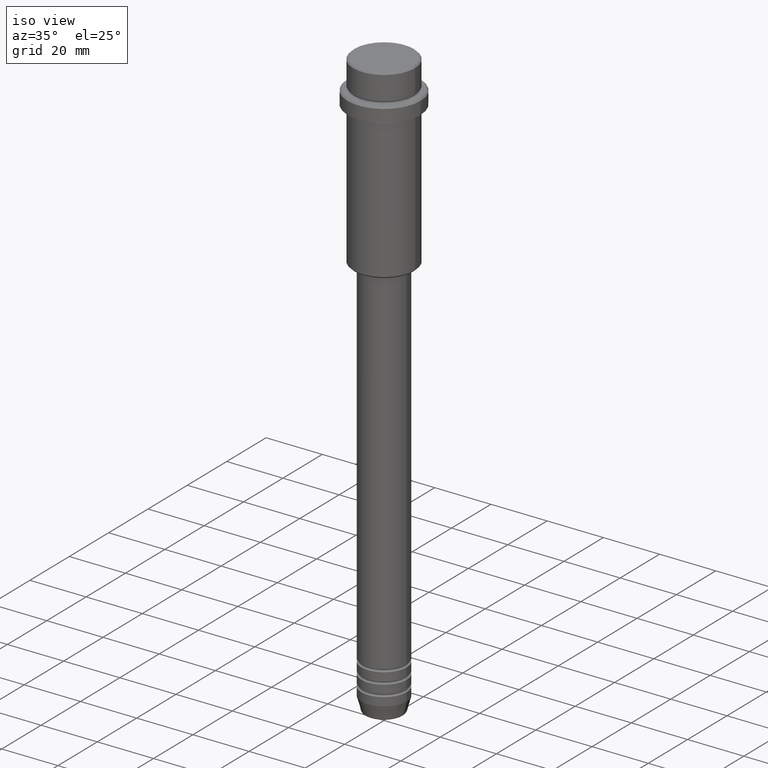
[diagram: clean part render]
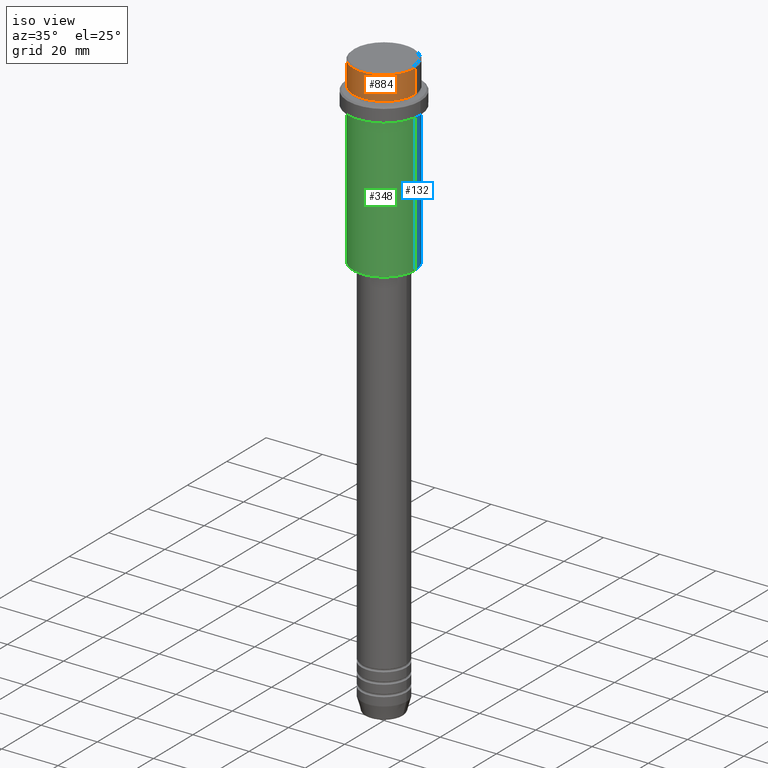
[diagram: same view with three faces highlighted in distinct colors, each labeled with its STEP entity id]
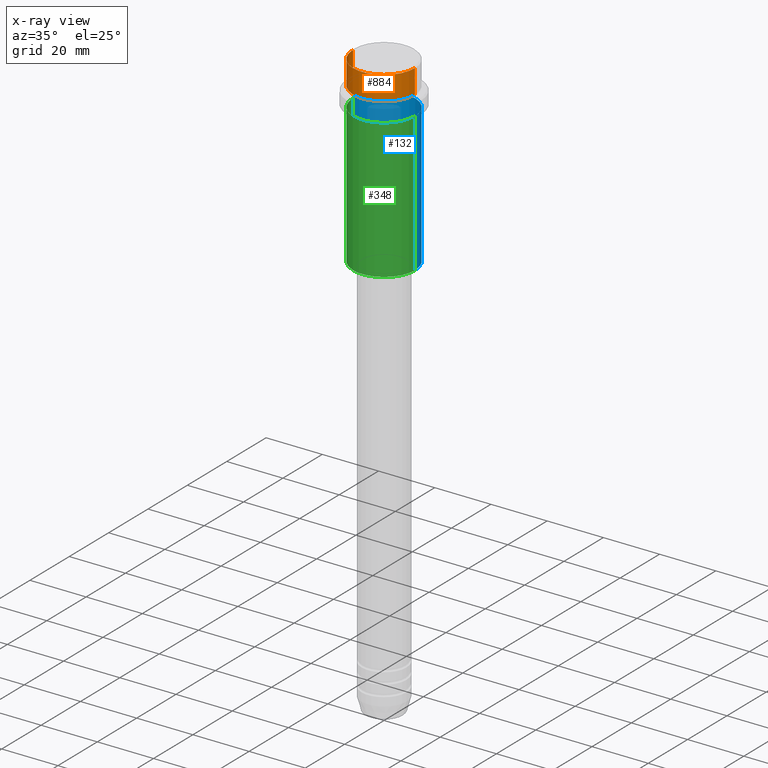
[diagram: x-ray of the same camera — body ghosted, the three highlighted faces saturated]
A machine part, iso view with three faces highlighted in distinct colors.
The next image is the same camera in x-ray (body ghosted, the three faces saturated) — at least one of them is partly hidden behind the body in this view.
Their STEP definitions:

[orange] entity #884 — the highlighted cylindrical surface (partial cylindrical patch) has radius 11 mm, axis along (-0, -0, 1).
#9 = DIRECTION ( 'NONE',  ( 1.000000000000000000, 0.000000000000000000, 0.000000000000000000 ) ) ;
#96 = DIRECTION ( 'NONE',  ( 0.000000000000000000, 0.000000000000000000, -1.000000000000000000 ) ) ;
#115 = CARTESIAN_POINT ( 'NONE',  ( -10.99999999999997158, 1.347111479062085841E-15, -9.000000000000000000 ) ) ;
#131 = CIRCLE ( 'NONE', #928, 10.99999999999997158 ) ;
#305 = DIRECTION ( 'NONE',  ( -0.000000000000000000, -0.000000000000000000, 1.000000000000000000 ) ) ;
#314 = VECTOR ( 'NONE', #1154, 1000.000000000000000 ) ;
#418 = CARTESIAN_POINT ( 'NONE',  ( 0.000000000000000000, 0.000000000000000000, -0.4999999999999605316 ) ) ;
#602 = VERTEX_POINT ( 'NONE', #1382 ) ;
#626 = AXIS2_PLACEMENT_3D ( 'NONE', #418, #96, #1162 ) ;
#637 = VERTEX_POINT ( 'NONE', #115 ) ;
#671 = CARTESIAN_POINT ( 'NONE',  ( 0.000000000000000000, 0.000000000000000000, -9.000000000000000000 ) ) ;
#702 = LINE ( 'NONE', #1038, #314 ) ;
#722 = CARTESIAN_POINT ( 'NONE',  ( 10.99999999999998757, 0.000000000000000000, 0.000000000000000000 ) ) ;
#786 = CARTESIAN_POINT ( 'NONE',  ( 0.000000000000000000, 0.000000000000000000, 0.000000000000000000 ) ) ;
#821 = ORIENTED_EDGE ( 'NONE', *, *, #1124, .T. ) ;
#846 = LINE ( 'NONE', #722, #952 ) ;
#884 = ADVANCED_FACE ( 'NONE', ( #1112 ), #1331, .T. ) ;
#892 = DIRECTION ( 'NONE',  ( -0.000000000000000000, -0.000000000000000000, 1.000000000000000000 ) ) ;
#894 = EDGE_CURVE ( 'NONE', #637, #1004, #702, .T. ) ;
#897 = DIRECTION ( 'NONE',  ( 1.000000000000000000, 0.000000000000000000, 0.000000000000000000 ) ) ;
#928 = AXIS2_PLACEMENT_3D ( 'NONE', #671, #892, #9 ) ;
#929 = ORIENTED_EDGE ( 'NONE', *, *, #977, .T. ) ;
#952 = VECTOR ( 'NONE', #305, 1000.000000000000000 ) ;
#977 = EDGE_CURVE ( 'NONE', #637, #1323, #131, .T. ) ;
#1004 = VERTEX_POINT ( 'NONE', #1232 ) ;
#1038 = CARTESIAN_POINT ( 'NONE',  ( -10.99999999999998757, 1.347111479062086827E-15, 0.000000000000000000 ) ) ;
#1082 = EDGE_CURVE ( 'NONE', #602, #1004, #1252, .T. ) ;
#1112 = FACE_OUTER_BOUND ( 'NONE', #1410, .T. ) ;
#1124 = EDGE_CURVE ( 'NONE', #1323, #602, #846, .T. ) ;
#1151 = ORIENTED_EDGE ( 'NONE', *, *, #894, .F. ) ;
#1154 = DIRECTION ( 'NONE',  ( -0.000000000000000000, -0.000000000000000000, 1.000000000000000000 ) ) ;
#1162 = DIRECTION ( 'NONE',  ( 1.000000000000000000, 0.000000000000000000, 0.000000000000000000 ) ) ;
#1183 = AXIS2_PLACEMENT_3D ( 'NONE', #786, #1227, #897 ) ;
#1227 = DIRECTION ( 'NONE',  ( -0.000000000000000000, -0.000000000000000000, 1.000000000000000000 ) ) ;
#1232 = CARTESIAN_POINT ( 'NONE',  ( -10.99999999999998757, 1.347111479062086827E-15, -0.4999999999999605316 ) ) ;
#1252 = CIRCLE ( 'NONE', #626, 10.99999999999998757 ) ;
#1323 = VERTEX_POINT ( 'NONE', #1350 ) ;
#1331 = CYLINDRICAL_SURFACE ( 'NONE', #1183, 10.99999999999998757 ) ;
#1350 = CARTESIAN_POINT ( 'NONE',  ( 10.99999999999997158, 0.000000000000000000, -9.000000000000000000 ) ) ;
#1380 = ORIENTED_EDGE ( 'NONE', *, *, #1082, .T. ) ;
#1382 = CARTESIAN_POINT ( 'NONE',  ( 10.99999999999998757, 0.000000000000000000, -0.4999999999999605316 ) ) ;
#1410 = EDGE_LOOP ( 'NONE', ( #1151, #929, #821, #1380 ) ) ;

[blue] entity #132 — the highlighted cylindrical surface (partial cylindrical patch) has radius 11 mm, axis along (-0, -0, 1).
#11 = ORIENTED_EDGE ( 'NONE', *, *, #498, .T. ) ;
#22 = DIRECTION ( 'NONE',  ( 1.000000000000000000, 0.000000000000000000, 0.000000000000000000 ) ) ;
#65 = ORIENTED_EDGE ( 'NONE', *, *, #991, .F. ) ;
#107 = AXIS2_PLACEMENT_3D ( 'NONE', #344, #1333, #662 ) ;
#132 = ADVANCED_FACE ( 'NONE', ( #978 ), #432, .T. ) ;
#204 = CARTESIAN_POINT ( 'NONE',  ( 10.99999999999998757, 0.000000000000000000, 0.000000000000000000 ) ) ;
#230 = CARTESIAN_POINT ( 'NONE',  ( -10.99999999999997158, 1.347111479062085841E-15, -16.00000000000000355 ) ) ;
#240 = AXIS2_PLACEMENT_3D ( 'NONE', #445, #1327, #22 ) ;
#255 = VERTEX_POINT ( 'NONE', #366 ) ;
#263 = CARTESIAN_POINT ( 'NONE',  ( 0.000000000000000000, 0.000000000000000000, -65.50000000000001421 ) ) ;
#281 = LINE ( 'NONE', #502, #442 ) ;
#344 = CARTESIAN_POINT ( 'NONE',  ( 0.000000000000000000, 0.000000000000000000, -16.00000000000000355 ) ) ;
#358 = AXIS2_PLACEMENT_3D ( 'NONE', #263, #881, #1120 ) ;
#366 = CARTESIAN_POINT ( 'NONE',  ( 10.99999999999998757, 0.000000000000000000, -65.50000000000001421 ) ) ;
#430 = ORIENTED_EDGE ( 'NONE', *, *, #783, .T. ) ;
#432 = CYLINDRICAL_SURFACE ( 'NONE', #240, 10.99999999999998757 ) ;
#442 = VECTOR ( 'NONE', #613, 1000.000000000000000 ) ;
#445 = CARTESIAN_POINT ( 'NONE',  ( 0.000000000000000000, 0.000000000000000000, 0.000000000000000000 ) ) ;
#498 = EDGE_CURVE ( 'NONE', #528, #964, #281, .T. ) ;
#502 = CARTESIAN_POINT ( 'NONE',  ( -10.99999999999998757, 1.347111479062086827E-15, 0.000000000000000000 ) ) ;
#528 = VERTEX_POINT ( 'NONE', #961 ) ;
#539 = CIRCLE ( 'NONE', #107, 10.99999999999997158 ) ;
#613 = DIRECTION ( 'NONE',  ( -0.000000000000000000, -0.000000000000000000, 1.000000000000000000 ) ) ;
#662 = DIRECTION ( 'NONE',  ( 1.000000000000000000, 0.000000000000000000, 0.000000000000000000 ) ) ;
#714 = ORIENTED_EDGE ( 'NONE', *, *, #1062, .F. ) ;
#783 = EDGE_CURVE ( 'NONE', #255, #528, #875, .T. ) ;
#833 = VERTEX_POINT ( 'NONE', #888 ) ;
#875 = CIRCLE ( 'NONE', #358, 10.99999999999998757 ) ;
#881 = DIRECTION ( 'NONE',  ( -0.000000000000000000, -0.000000000000000000, 1.000000000000000000 ) ) ;
#888 = CARTESIAN_POINT ( 'NONE',  ( 10.99999999999997158, 0.000000000000000000, -16.00000000000000355 ) ) ;
#961 = CARTESIAN_POINT ( 'NONE',  ( -10.99999999999998757, 1.347111479062086827E-15, -65.50000000000001421 ) ) ;
#964 = VERTEX_POINT ( 'NONE', #230 ) ;
#978 = FACE_OUTER_BOUND ( 'NONE', #1261, .T. ) ;
#991 = EDGE_CURVE ( 'NONE', #833, #964, #539, .T. ) ;
#1062 = EDGE_CURVE ( 'NONE', #255, #833, #1072, .T. ) ;
#1072 = LINE ( 'NONE', #204, #1273 ) ;
#1079 = DIRECTION ( 'NONE',  ( -0.000000000000000000, -0.000000000000000000, 1.000000000000000000 ) ) ;
#1120 = DIRECTION ( 'NONE',  ( -1.000000000000000000, 0.000000000000000000, 0.000000000000000000 ) ) ;
#1261 = EDGE_LOOP ( 'NONE', ( #430, #11, #65, #714 ) ) ;
#1273 = VECTOR ( 'NONE', #1079, 1000.000000000000000 ) ;
#1327 = DIRECTION ( 'NONE',  ( -0.000000000000000000, -0.000000000000000000, 1.000000000000000000 ) ) ;
#1333 = DIRECTION ( 'NONE',  ( -0.000000000000000000, -0.000000000000000000, 1.000000000000000000 ) ) ;

[green] entity #348 — the highlighted cylindrical surface (partial cylindrical patch) has radius 11 mm, axis along (-0, -0, 1).
#23 = ORIENTED_EDGE ( 'NONE', *, *, #378, .F. ) ;
#57 = AXIS2_PLACEMENT_3D ( 'NONE', #154, #463, #819 ) ;
#122 = CYLINDRICAL_SURFACE ( 'NONE', #1404, 10.99999999999998757 ) ;
#154 = CARTESIAN_POINT ( 'NONE',  ( 0.000000000000000000, 0.000000000000000000, -16.00000000000000355 ) ) ;
#204 = CARTESIAN_POINT ( 'NONE',  ( 10.99999999999998757, 0.000000000000000000, 0.000000000000000000 ) ) ;
#227 = FACE_OUTER_BOUND ( 'NONE', #913, .T. ) ;
#230 = CARTESIAN_POINT ( 'NONE',  ( -10.99999999999997158, 1.347111479062085841E-15, -16.00000000000000355 ) ) ;
#250 = EDGE_CURVE ( 'NONE', #528, #255, #1043, .T. ) ;
#255 = VERTEX_POINT ( 'NONE', #366 ) ;
#264 = DIRECTION ( 'NONE',  ( 1.000000000000000000, 0.000000000000000000, 0.000000000000000000 ) ) ;
#281 = LINE ( 'NONE', #502, #442 ) ;
#348 = ADVANCED_FACE ( 'NONE', ( #227 ), #122, .T. ) ;
#366 = CARTESIAN_POINT ( 'NONE',  ( 10.99999999999998757, 0.000000000000000000, -65.50000000000001421 ) ) ;
#377 = DIRECTION ( 'NONE',  ( -0.000000000000000000, -0.000000000000000000, 1.000000000000000000 ) ) ;
#378 = EDGE_CURVE ( 'NONE', #964, #833, #1358, .T. ) ;
#442 = VECTOR ( 'NONE', #613, 1000.000000000000000 ) ;
#463 = DIRECTION ( 'NONE',  ( -0.000000000000000000, -0.000000000000000000, 1.000000000000000000 ) ) ;
#498 = EDGE_CURVE ( 'NONE', #528, #964, #281, .T. ) ;
#502 = CARTESIAN_POINT ( 'NONE',  ( -10.99999999999998757, 1.347111479062086827E-15, 0.000000000000000000 ) ) ;
#528 = VERTEX_POINT ( 'NONE', #961 ) ;
#536 = AXIS2_PLACEMENT_3D ( 'NONE', #1150, #377, #600 ) ;
#558 = CARTESIAN_POINT ( 'NONE',  ( 0.000000000000000000, 0.000000000000000000, 0.000000000000000000 ) ) ;
#590 = ORIENTED_EDGE ( 'NONE', *, *, #498, .F. ) ;
#600 = DIRECTION ( 'NONE',  ( -1.000000000000000000, 0.000000000000000000, 0.000000000000000000 ) ) ;
#613 = DIRECTION ( 'NONE',  ( -0.000000000000000000, -0.000000000000000000, 1.000000000000000000 ) ) ;
#636 = ORIENTED_EDGE ( 'NONE', *, *, #250, .T. ) ;
#779 = DIRECTION ( 'NONE',  ( -0.000000000000000000, -0.000000000000000000, 1.000000000000000000 ) ) ;
#819 = DIRECTION ( 'NONE',  ( 1.000000000000000000, 0.000000000000000000, 0.000000000000000000 ) ) ;
#833 = VERTEX_POINT ( 'NONE', #888 ) ;
#888 = CARTESIAN_POINT ( 'NONE',  ( 10.99999999999997158, 0.000000000000000000, -16.00000000000000355 ) ) ;
#913 = EDGE_LOOP ( 'NONE', ( #590, #636, #1164, #23 ) ) ;
#961 = CARTESIAN_POINT ( 'NONE',  ( -10.99999999999998757, 1.347111479062086827E-15, -65.50000000000001421 ) ) ;
#964 = VERTEX_POINT ( 'NONE', #230 ) ;
#1043 = CIRCLE ( 'NONE', #536, 10.99999999999998757 ) ;
#1062 = EDGE_CURVE ( 'NONE', #255, #833, #1072, .T. ) ;
#1072 = LINE ( 'NONE', #204, #1273 ) ;
#1079 = DIRECTION ( 'NONE',  ( -0.000000000000000000, -0.000000000000000000, 1.000000000000000000 ) ) ;
#1150 = CARTESIAN_POINT ( 'NONE',  ( 0.000000000000000000, 0.000000000000000000, -65.50000000000001421 ) ) ;
#1164 = ORIENTED_EDGE ( 'NONE', *, *, #1062, .T. ) ;
#1273 = VECTOR ( 'NONE', #1079, 1000.000000000000000 ) ;
#1358 = CIRCLE ( 'NONE', #57, 10.99999999999997158 ) ;
#1404 = AXIS2_PLACEMENT_3D ( 'NONE', #558, #779, #264 ) ;